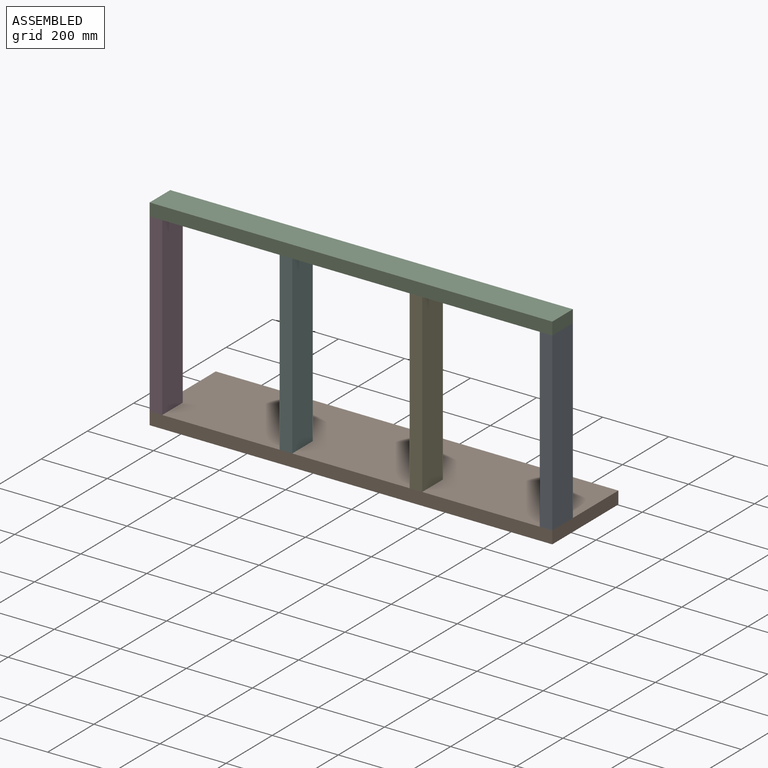
[diagram: assembled view]
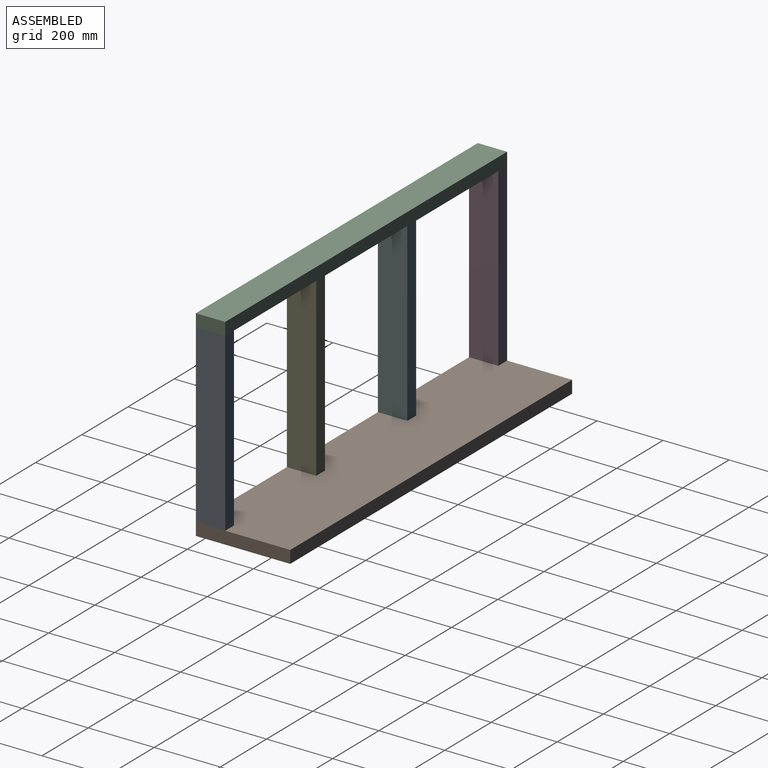
[diagram: assembled view, second angle]
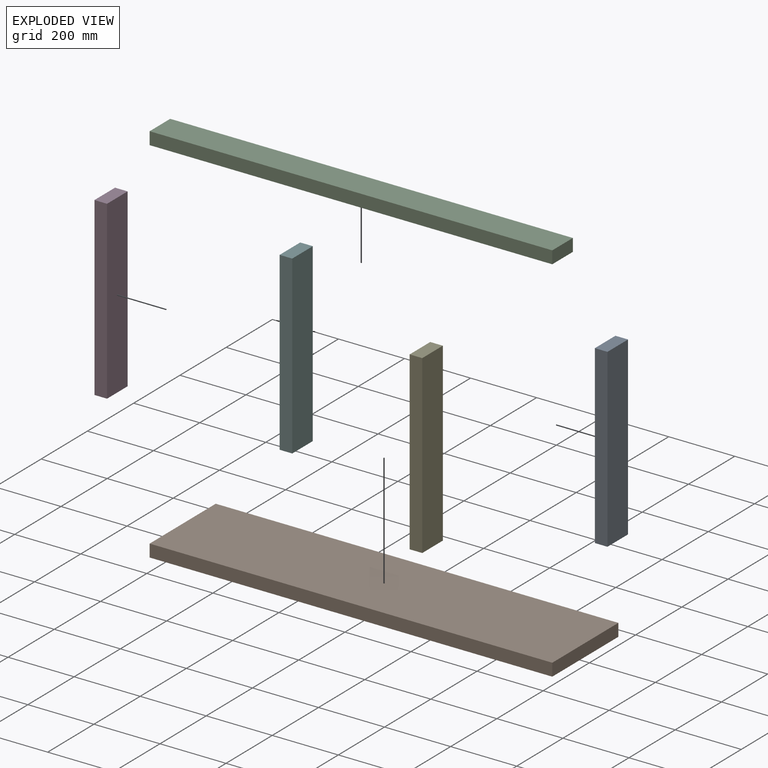
[diagram: exploded view]
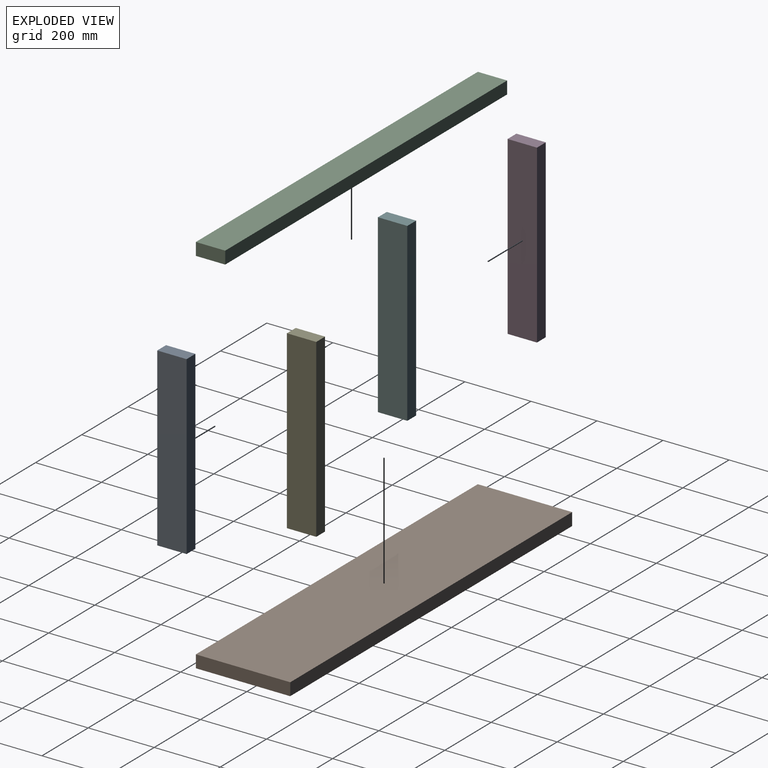
[diagram: exploded view, second angle]
ASSEMBLY  parts=6 mates=2
PART A: 6 faces, bbox 533.4x88.9x38.1 mm
  f0: plane 533.4x38.1mm, normal (0,1,0), area 20322.5mm2, adj f1,f3,f4,f5
  f1: plane 88.9x38.1mm, normal (-1,0,0), area 3387.1mm2, adj f0,f2,f4,f5
  f2: plane 533.4x38.1mm, normal (0,-1,0), area 20322.5mm2, adj f1,f3,f4,f5
  f3: plane 88.9x38.1mm, normal (1,0,0), area 3387.1mm2, adj f0,f2,f4,f5
  f4: plane 533.4x88.9mm, normal (0,0,1), area 47419.3mm2, adj f0,f1,f2,f3
  f5: plane 533.4x88.9mm, normal (0,0,-1), area 47419.3mm2, adj f0,f1,f2,f3
PART B: 6 faces, bbox 1219.2x285.8x38.1 mm
  f0: plane 285.75x38.1mm, normal (-1,0,0), area 10887.1mm2, adj f1,f3,f4,f5
  f1: plane 1219.2x38.1mm, normal (0,-1,0), area 46451.5mm2, adj f0,f2,f4,f5
  f2: plane 285.75x38.1mm, normal (1,0,0), area 10887.1mm2, adj f1,f3,f4,f5
  f3: plane 1219.2x38.1mm, normal (0,1,0), area 46451.5mm2, adj f0,f2,f4,f5
  f4: plane 1219.2x285.75mm, normal (0,0,1), area 348386.4mm2, adj f0,f1,f2,f3
  f5: plane 1219.2x285.75mm, normal (0,0,-1), area 348386.4mm2, adj f0,f1,f2,f3
PART C: 6 faces, bbox 1219.2x88.9x38.1 mm
  f0: plane 1219.2x38.1mm, normal (0,1,0), area 46451.5mm2, adj f1,f3,f4,f5
  f1: plane 88.9x38.1mm, normal (-1,0,0), area 3387.1mm2, adj f0,f2,f4,f5
  f2: plane 1219.2x38.1mm, normal (0,-1,0), area 46451.5mm2, adj f1,f3,f4,f5
  f3: plane 88.9x38.1mm, normal (1,0,0), area 3387.1mm2, adj f0,f2,f4,f5
  f4: plane 1219.2x88.9mm, normal (0,0,1), area 108386.9mm2, adj f0,f1,f2,f3
  f5: plane 1219.2x88.9mm, normal (0,0,-1), area 108386.9mm2, adj f0,f1,f2,f3
PART D: same geometry as A
PART E: same geometry as A
PART F: same geometry as A
PLACE A rot(axis=(-0.71,0,-0.71),180deg) t=(758.98,-464.54,-227.47)mm
PLACE B rot(axis=(1,-0.04,0.08),0deg) t=(194.27,-473.84,-744.02)mm
PLACE C rot(axis=(-1,0,0),180deg) t=(191.76,43.46,576.78)mm
PLACE D rot(axis=(-0.71,0,-0.71),180deg) t=(-422.12,-464.54,-227.47)mm
PLACE E rot(axis=(-0.71,0,-0.71),180deg) t=(365.28,-464.54,-227.47)mm
PLACE F rot(axis=(-0.71,0,-0.71),180deg) t=(-28.42,-464.54,-227.47)mm
MATE fastened C.f4 <-> A.f3  axis (0,0,-1) through (797.08,43.92,30.68)mm
MATE fastened A.f1 <-> B.f4  axis (0,0,-1) through (797.08,43.92,-502.72)mm
